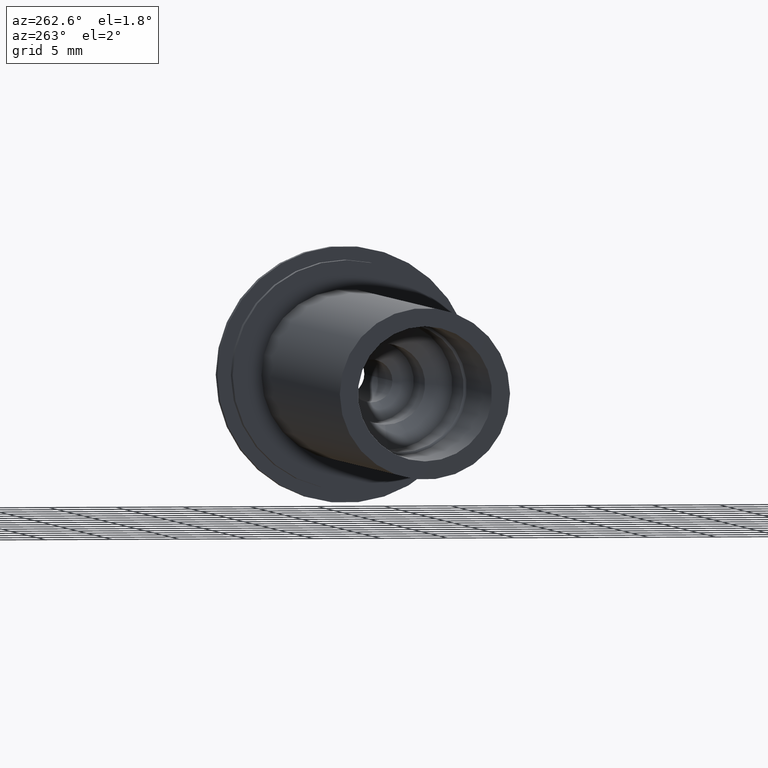
[diagram: clean part render]
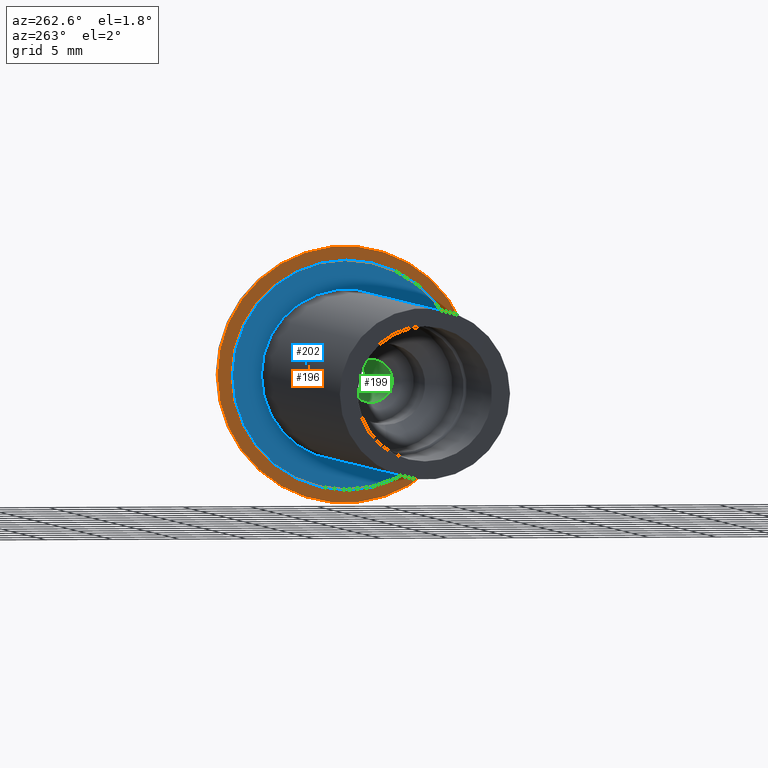
[diagram: same view with three faces highlighted in distinct colors, each labeled with its STEP entity id]
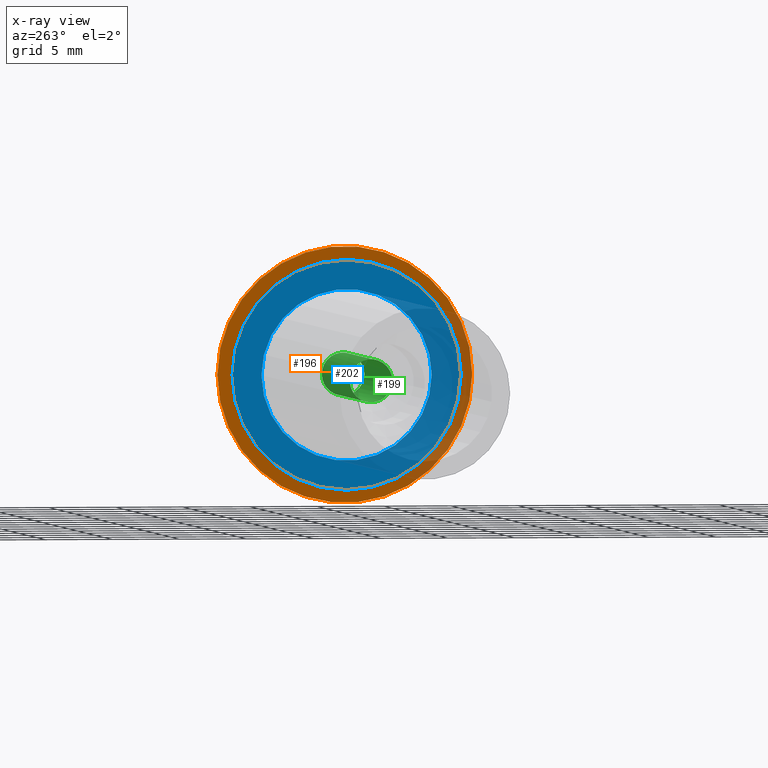
[diagram: x-ray of the same camera — body ghosted, the three highlighted faces saturated]
A machine part, auxiliary view with three faces highlighted in distinct colors.
The next image is the same camera in x-ray (body ghosted, the three faces saturated) — at least one of them is partly hidden behind the body in this view.
Their STEP definitions:

[orange] entity #196 — the highlighted planar face has unit normal (-1, 0, 0).
#15=FACE_BOUND('',#51,.T.);
#19=PLANE('',#241);
#36=FACE_OUTER_BOUND('',#50,.T.);
#50=EDGE_LOOP('',(#162));
#51=EDGE_LOOP('',(#163));
#90=CIRCLE('',#242,9.50000000000001);
#91=CIRCLE('',#243,8.5);
#105=VERTEX_POINT('',#356);
#106=VERTEX_POINT('',#358);
#126=EDGE_CURVE('',#105,#105,#90,.T.);
#127=EDGE_CURVE('',#106,#106,#91,.T.);
#162=ORIENTED_EDGE('',*,*,#126,.F.);
#163=ORIENTED_EDGE('',*,*,#127,.T.);
#196=ADVANCED_FACE('',(#36,#15),#19,.T.);
#241=AXIS2_PLACEMENT_3D('',#355,#292,#293);
#242=AXIS2_PLACEMENT_3D('',#357,#294,#295);
#243=AXIS2_PLACEMENT_3D('',#359,#296,#297);
#292=DIRECTION('center_axis',(-1.,0.,0.));
#293=DIRECTION('ref_axis',(0.,0.,1.));
#294=DIRECTION('center_axis',(1.,0.,0.));
#295=DIRECTION('ref_axis',(0.,0.,-1.));
#296=DIRECTION('center_axis',(1.,0.,0.));
#297=DIRECTION('ref_axis',(0.,0.,-1.));
#355=CARTESIAN_POINT('Origin',(-0.999999999999999,9.50000000000001,0.));
#356=CARTESIAN_POINT('',(-0.999999999999999,-9.50000000000001,-1.16341445918999E-15));
#357=CARTESIAN_POINT('Origin',(-0.999999999999999,0.,0.));
#358=CARTESIAN_POINT('',(-1.,-8.5,-1.04094977927525E-15));
#359=CARTESIAN_POINT('Origin',(-1.,0.,0.));

[blue] entity #202 — the highlighted planar face has unit normal (-1, 0, 0).
#18=FACE_BOUND('',#60,.T.);
#22=PLANE('',#253);
#42=FACE_OUTER_BOUND('',#59,.T.);
#59=EDGE_LOOP('',(#181));
#60=EDGE_LOOP('',(#182));
#95=CIRCLE('',#252,6.35);
#96=CIRCLE('',#254,8.5);
#110=VERTEX_POINT('',#373);
#111=VERTEX_POINT('',#377);
#133=EDGE_CURVE('',#110,#110,#95,.T.);
#135=EDGE_CURVE('',#111,#111,#96,.T.);
#181=ORIENTED_EDGE('',*,*,#135,.F.);
#182=ORIENTED_EDGE('',*,*,#133,.T.);
#202=ADVANCED_FACE('',(#42,#18),#22,.T.);
#252=AXIS2_PLACEMENT_3D('',#374,#316,#317);
#253=AXIS2_PLACEMENT_3D('',#376,#319,#320);
#254=AXIS2_PLACEMENT_3D('',#378,#321,#322);
#316=DIRECTION('center_axis',(1.,0.,0.));
#317=DIRECTION('ref_axis',(0.,0.,-1.));
#319=DIRECTION('center_axis',(-1.,0.,0.));
#320=DIRECTION('ref_axis',(0.,0.,1.));
#321=DIRECTION('center_axis',(1.,0.,0.));
#322=DIRECTION('ref_axis',(0.,0.,-1.));
#373=CARTESIAN_POINT('',(-2.,-6.35,-7.77650717458569E-16));
#374=CARTESIAN_POINT('Origin',(-2.,0.,0.));
#376=CARTESIAN_POINT('Origin',(-2.,8.5,0.));
#377=CARTESIAN_POINT('',(-2.,-8.5,-1.04094977927525E-15));
#378=CARTESIAN_POINT('Origin',(-2.,0.,0.));

[green] entity #199 — the highlighted cylindrical surface (bore or boss wall) has radius 1.5875 mm, axis along (1, 0, 0).
#27=CYLINDRICAL_SURFACE('',#248,1.5875);
#39=FACE_OUTER_BOUND('',#55,.T.);
#55=EDGE_LOOP('',(#170,#171,#172,#173,#174));
#69=LINE('',#368,#79);
#79=VECTOR('',#309,1.5875);
#83=CIRCLE('',#229,1.5875);
#84=CIRCLE('',#230,1.5875);
#93=CIRCLE('',#247,1.58750000000001);
#98=VERTEX_POINT('',#330);
#99=VERTEX_POINT('',#332);
#108=VERTEX_POINT('',#365);
#114=EDGE_CURVE('',#99,#98,#83,.T.);
#115=EDGE_CURVE('',#98,#99,#84,.T.);
#130=EDGE_CURVE('',#108,#108,#93,.T.);
#131=EDGE_CURVE('',#108,#99,#69,.T.);
#170=ORIENTED_EDGE('',*,*,#130,.T.);
#171=ORIENTED_EDGE('',*,*,#131,.T.);
#172=ORIENTED_EDGE('',*,*,#114,.T.);
#173=ORIENTED_EDGE('',*,*,#115,.T.);
#174=ORIENTED_EDGE('',*,*,#131,.F.);
#199=ADVANCED_FACE('',(#39),#27,.F.);
#229=AXIS2_PLACEMENT_3D('',#333,#263,#264);
#230=AXIS2_PLACEMENT_3D('',#334,#265,#266);
#247=AXIS2_PLACEMENT_3D('',#366,#305,#306);
#248=AXIS2_PLACEMENT_3D('',#367,#307,#308);
#263=DIRECTION('center_axis',(-1.,0.,0.));
#264=DIRECTION('ref_axis',(0.,1.,0.));
#265=DIRECTION('center_axis',(-1.,0.,0.));
#266=DIRECTION('ref_axis',(0.,1.,0.));
#305=DIRECTION('center_axis',(1.,0.,0.));
#306=DIRECTION('ref_axis',(0.,0.,-1.));
#307=DIRECTION('center_axis',(1.,0.,0.));
#308=DIRECTION('ref_axis',(0.,1.,0.));
#309=DIRECTION('',(-1.,0.,0.));
#330=CARTESIAN_POINT('',(-16.0875,-1.94412679364642E-16,-1.5875));
#332=CARTESIAN_POINT('',(-16.0875,-1.5875,1.94412679364643E-16));
#333=CARTESIAN_POINT('Origin',(-16.0875,0.,0.));
#334=CARTESIAN_POINT('Origin',(-16.0875,0.,0.));
#365=CARTESIAN_POINT('',(4.44089209850063E-15,-1.5875,-1.94412679364643E-16));
#366=CARTESIAN_POINT('Origin',(4.44089209850063E-15,0.,0.));
#367=CARTESIAN_POINT('Origin',(-23.5,0.,0.));
#368=CARTESIAN_POINT('',(-23.5,-1.5875,-1.94412679364643E-16));